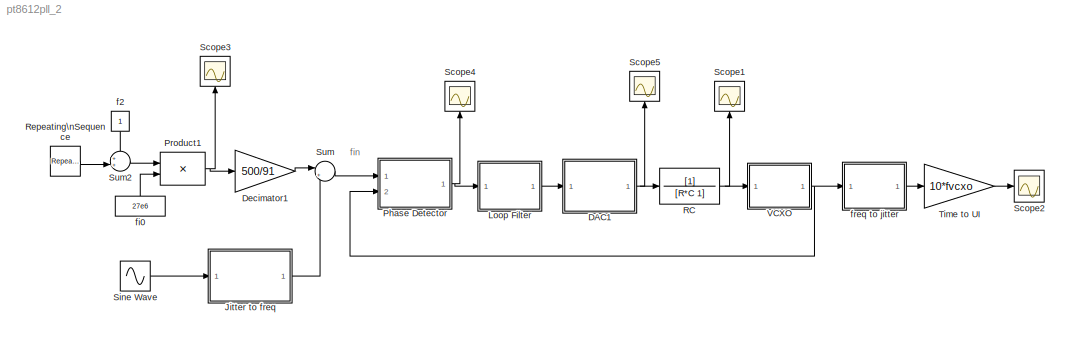
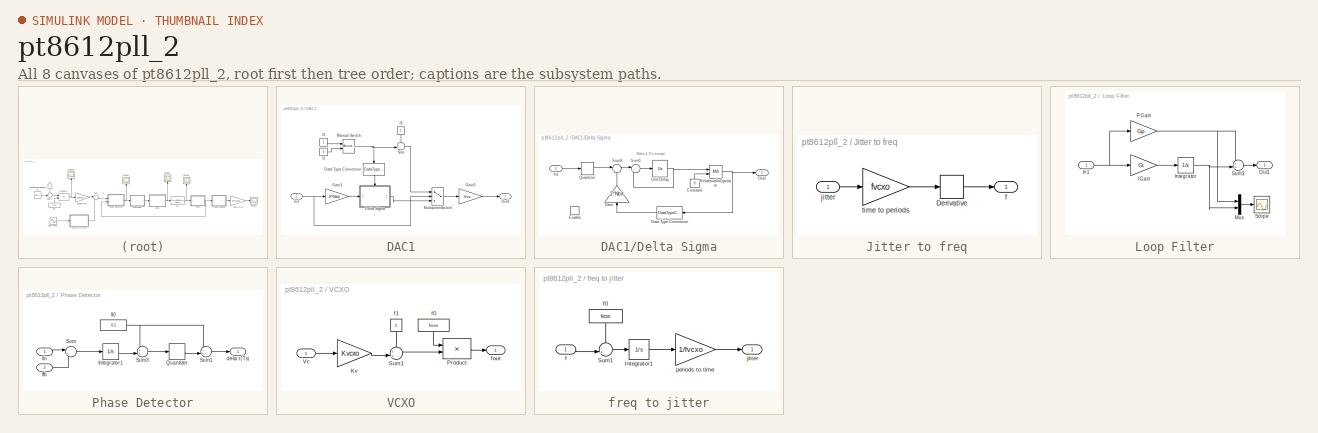
[diagram: thumbnail index - all 8 canvases of the model, root first then tree order]
MODEL pt8612pll_2
KIND model
CONFIG AbsTol = 1e-11
CONFIG FixedStep = auto
CONFIG MaxStep = auto
CONFIG MinStep = auto
CONFIG RelTol = 1e-8
CONFIG Solver = ode45
CONFIG SolverMode = Auto
CONFIG StartTime = 0.0
CONFIG StopTime = 100
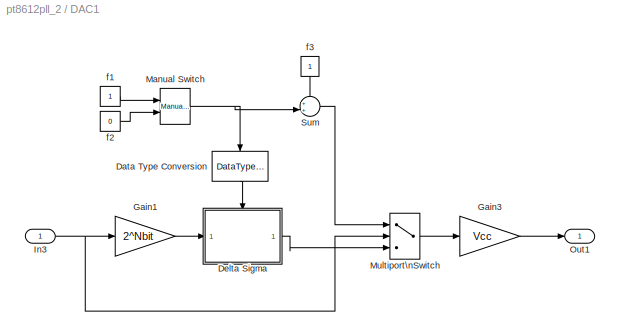
BLOCK [SubSystem] DAC1
  Ports = [1, 1]
  TreatAsAtomicUnit = off
BLOCK [DataTypeConversion] DAC1/Data Type Conversion
  DataType = boolean
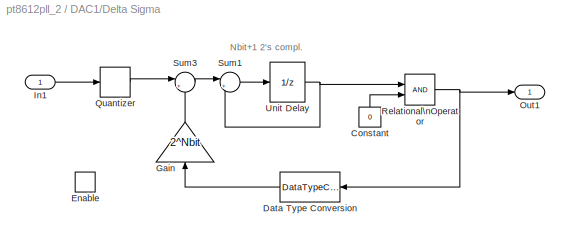
BLOCK [SubSystem] DAC1/Delta Sigma
  Ports = [1, 1, 1]
  TreatAsAtomicUnit = off
BLOCK [Constant] DAC1/Delta Sigma/Constant
  Value = 0
BLOCK [DataTypeConversion] DAC1/Delta Sigma/Data Type Conversion
BLOCK [EnablePort] DAC1/Delta Sigma/Enable
  Ports = []
  ZeroCross = off
BLOCK [Gain] DAC1/Delta Sigma/Gain
  Gain = 2^Nbit
BLOCK [Inport] DAC1/Delta Sigma/In1
BLOCK [Outport] DAC1/Delta Sigma/Out1
BLOCK [Quantizer] DAC1/Delta Sigma/Quantizer
  QuantizationInterval = 1
BLOCK [RelationalOperator] DAC1/Delta Sigma/Relational\nOperator
  InputSameDT = off
BLOCK [Sum] DAC1/Delta Sigma/Sum1
  IconShape = round
  InputSameDT = off
  Inputs = |++
  OutDataTypeMode = Inherit via internal rule
  Ports = [2, 1]
BLOCK [Sum] DAC1/Delta Sigma/Sum3
  IconShape = round
  InputSameDT = off
  Inputs = |+-
  OutDataTypeMode = Inherit via internal rule
  Ports = [2, 1]
BLOCK [UnitDelay] DAC1/Delta Sigma/Unit Delay
  SampleTime = Tds
BLOCK [Gain] DAC1/Gain1
  Gain = 2^Nbit
BLOCK [Gain] DAC1/Gain3
  Gain = Vcc
BLOCK [Inport] DAC1/In3
BLOCK [Reference] DAC1/Manual Switch  REF=simulink/Signal\nRouting/Manual Switch
  Ports = [2, 1]
  SourceBlock = simulink/Signal\nRouting/Manual Switch
  SourceType = Manual Switch
  action = 0
  sw = 0
BLOCK [MultiPortSwitch] DAC1/Multiport\nSwitch
  InputSameDT = off
  Inputs = 2
  Ports = [3, 1]
BLOCK [Outport] DAC1/Out1
BLOCK [Sum] DAC1/Sum
  IconShape = round
  InputSameDT = off
  Inputs = ++|
  OutDataTypeMode = Inherit via internal rule
  Ports = [2, 1]
BLOCK [Constant] DAC1/f1
BLOCK [Constant] DAC1/f2
  Value = 0
BLOCK [Constant] DAC1/f3
BLOCK [Gain] Decimator1
  Gain = 500/91
BLOCK [SubSystem] Jitter to freq
  Ports = [1, 1]
  TreatAsAtomicUnit = off
BLOCK [Derivative] Jitter to freq/Derivative
BLOCK [Outport] Jitter to freq/f
BLOCK [Inport] Jitter to freq/jitter
BLOCK [Gain] Jitter to freq/time to periods
  Gain = fvcxo
BLOCK [SubSystem] Loop Filter
  Ports = [1, 1]
  TreatAsAtomicUnit = off
BLOCK [Gain] Loop Filter/I Gain
  Gain = Gi
BLOCK [Inport] Loop Filter/In1
BLOCK [Integrator] Loop Filter/Integrator
  Ports = [1, 1]
BLOCK [Mux] Loop Filter/Mux
  DisplayOption = bar
  Inputs = 2
  Ports = [2, 1]
BLOCK [Outport] Loop Filter/Out1
BLOCK [Gain] Loop Filter/P Gain
  Gain = Gp
BLOCK [Scope] Loop Filter/Scope
  DataFormat = StructureWithTime
  LimitDataPoints = off
  NumInputPorts = 1
  Ports = [1]
  SaveName = ScopeData2
  YMax = 0.85
  YMin = 0
  ZoomMode = yonly
BLOCK [Sum] Loop Filter/Sum3
  IconShape = round
  InputSameDT = off
  Inputs = ++|
  OutDataTypeMode = Inherit via internal rule
  Ports = [2, 1]
BLOCK [SubSystem] Phase Detector
  Ports = [2, 1]
  TreatAsAtomicUnit = off
BLOCK [Integrator] Phase Detector/Integrator1
  Ports = [1, 1]
BLOCK [Quantizer] Phase Detector/Quantizer
  QuantizationInterval = 1
BLOCK [Sum] Phase Detector/Sum
  IconShape = round
  InputSameDT = off
  Inputs = |+-
  OutDataTypeMode = Inherit via internal rule
  Ports = [2, 1]
BLOCK [Sum] Phase Detector/Sum1
  IconShape = round
  InputSameDT = off
  Inputs = -+|
  OutDataTypeMode = Inherit via internal rule
  Ports = [2, 1]
BLOCK [Sum] Phase Detector/Sum3
  IconShape = round
  InputSameDT = off
  Inputs = ++|
  OutDataTypeMode = Inherit via internal rule
  Ports = [2, 1]
BLOCK [Outport] Phase Detector/delta t (Ts)
BLOCK [Inport] Phase Detector/ffb
  Port = 2
BLOCK [Constant] Phase Detector/fi0
  Value = 0.5
BLOCK [Inport] Phase Detector/fin
BLOCK [Product] Product1
  InputSameDT = off
  Ports = [2, 1]
BLOCK [TransferFcn] RC
  Denominator = [R*C 1]
BLOCK [Reference] Repeating\nSequence  REF=simulink/Sources/Repeating\nSequence
  Ports = [0, 1]
  SourceBlock = simulink/Sources/Repeating\nSequence
  SourceType = Repeating table
  rep_seq_t = [0 1 1 1000]
  rep_seq_y = [1 1 0 0]*1e-9
BLOCK [Scope] Scope1
  DataFormat = StructureWithTime
  LimitDataPoints = off
  NumInputPorts = 1
  Ports = [1]
  SaveName = ScopeData1
  TimeRange = 10
  YMax = 0.2
  YMin = -0.35
BLOCK [Scope] Scope2
  DataFormat = StructureWithTime
  LimitDataPoints = off
  NumInputPorts = 1
  Ports = [1]
  SaveName = ScopeData3
  TimeRange = 10
  YMax = 1.56
  YMin = 1.48
BLOCK [Scope] Scope3
  DataFormat = StructureWithTime
  LimitDataPoints = off
  NumInputPorts = 1
  Ports = [1]
  SaveName = ScopeData4
  YMax = 1.9
  YMin = 5.55112e-017
  ZoomMode = xonly
BLOCK [Scope] Scope4
  DataFormat = StructureWithTime
  LimitDataPoints = off
  NumInputPorts = 1
  Ports = [1]
  TimeRange = 10
  YMax = 0.5
  YMin = -0.5
  ZoomMode = xonly
BLOCK [Scope] Scope5
  DataFormat = StructureWithTime
  LimitDataPoints = off
  NumInputPorts = 1
  Ports = [1]
  SaveName = ScopeData5
  TimeRange = 10
  YMax = 0.2
  YMin = -0.35
  ZoomMode = xonly
BLOCK [Sin] Sine Wave
  Amplitude = 1e-9
  Frequency = 100
  SampleTime = 0
  SineType = Time based
BLOCK [Sum] Sum
  IconShape = round
  InputSameDT = off
  Inputs = |++
  OutDataTypeMode = Inherit via internal rule
  Ports = [2, 1]
BLOCK [Sum] Sum2
  IconShape = round
  InputSameDT = off
  Inputs = ++|
  OutDataTypeMode = Inherit via internal rule
  Ports = [2, 1]
BLOCK [Gain] Time to UI
  Gain = 10*fvcxo
BLOCK [SubSystem] VCXO
  Ports = [1, 1]
  TreatAsAtomicUnit = off
BLOCK [Gain] VCXO/Kv
  Gain = Kvcxo
BLOCK [Product] VCXO/Product
  InputSameDT = off
  Ports = [2, 1]
BLOCK [Sum] VCXO/Sum1
  IconShape = round
  InputSameDT = off
  Inputs = ++|
  OutDataTypeMode = Inherit via internal rule
  Ports = [2, 1]
BLOCK [Inport] VCXO/Vc
BLOCK [Constant] VCXO/f0
  Value = fvcxo
BLOCK [Constant] VCXO/f1
BLOCK [Outport] VCXO/fout
BLOCK [Constant] f2
BLOCK [Constant] fi0
  Value = 27e6
BLOCK [SubSystem] freq to jitter
  Ports = [1, 1]
  TreatAsAtomicUnit = off
BLOCK [Integrator] freq to jitter/Integrator1
  Ports = [1, 1]
BLOCK [Sum] freq to jitter/Sum1
  IconShape = round
  InputSameDT = off
  Inputs = -+|
  OutDataTypeMode = Inherit via internal rule
  Ports = [2, 1]
BLOCK [Inport] freq to jitter/f
BLOCK [Constant] freq to jitter/f0
  Value = fvcxo
BLOCK [Outport] freq to jitter/jitter
BLOCK [Gain] freq to jitter/periods to time
  Gain = 1/fvcxo
ANNOTATION (root): fin
ANNOTATION DAC1/Delta Sigma: Nbit+1 2's compl.
LINE DAC1/Data Type Conversion:1 -> DAC1/Delta Sigma:enable
LINE DAC1/Delta Sigma/Constant:1 -> DAC1/Delta Sigma/Relational\nOperator:2
LINE DAC1/Delta Sigma/Data Type Conversion:1 -> DAC1/Delta Sigma/Gain:1
LINE DAC1/Delta Sigma/Gain:1 -> DAC1/Delta Sigma/Sum3:2
LINE DAC1/Delta Sigma/In1:1 -> DAC1/Delta Sigma/Quantizer:1
LINE DAC1/Delta Sigma/Quantizer:1 -> DAC1/Delta Sigma/Sum3:1
NET DAC1/Delta Sigma/Relational\nOperator:1 -> DAC1/Delta Sigma/Data Type Conversion:1, DAC1/Delta Sigma/Out1:1
LINE DAC1/Delta Sigma/Sum1:1 -> DAC1/Delta Sigma/Unit Delay:1
LINE DAC1/Delta Sigma/Sum3:1 -> DAC1/Delta Sigma/Sum1:1
NET DAC1/Delta Sigma/Unit Delay:1 -> DAC1/Delta Sigma/Relational\nOperator:1, DAC1/Delta Sigma/Sum1:2
LINE DAC1/Delta Sigma:1 -> DAC1/Multiport\nSwitch:3
LINE DAC1/Gain1:1 -> DAC1/Delta Sigma:1
LINE DAC1/Gain3:1 -> DAC1/Out1:1
NET DAC1/In3:1 -> DAC1/Gain1:1, DAC1/Multiport\nSwitch:2
NET DAC1/Manual Switch:1 -> DAC1/Data Type Conversion:1, DAC1/Sum:2
LINE DAC1/Multiport\nSwitch:1 -> DAC1/Gain3:1
LINE DAC1/Sum:1 -> DAC1/Multiport\nSwitch:1
LINE DAC1/f1:1 -> DAC1/Manual Switch:1
LINE DAC1/f2:1 -> DAC1/Manual Switch:2
LINE DAC1/f3:1 -> DAC1/Sum:1
NET DAC1:1 -> RC:1, Scope5:1
LINE Decimator1:1 -> Sum:1
LINE Jitter to freq/Derivative:1 -> Jitter to freq/f:1
LINE Jitter to freq/jitter:1 -> Jitter to freq/time to periods:1
LINE Jitter to freq/time to periods:1 -> Jitter to freq/Derivative:1
LINE Jitter to freq:1 -> Sum:2
LINE Loop Filter/I Gain:1 -> Loop Filter/Integrator:1
NET Loop Filter/In1:1 -> Loop Filter/I Gain:1, Loop Filter/P Gain:1
NET Loop Filter/Integrator:1 -> Loop Filter/Mux:2, Loop Filter/Sum3:2
LINE Loop Filter/Mux:1 -> Loop Filter/Scope:1
NET Loop Filter/P Gain:1 -> Loop Filter/Mux:1, Loop Filter/Sum3:1
LINE Loop Filter/Sum3:1 -> Loop Filter/Out1:1
LINE Loop Filter:1 -> DAC1:1
LINE Phase Detector/Integrator1:1 -> Phase Detector/Sum3:2
LINE Phase Detector/Quantizer:1 -> Phase Detector/Sum1:2
LINE Phase Detector/Sum1:1 -> Phase Detector/delta t (Ts):1
LINE Phase Detector/Sum3:1 -> Phase Detector/Quantizer:1
LINE Phase Detector/Sum:1 -> Phase Detector/Integrator1:1
LINE Phase Detector/ffb:1 -> Phase Detector/Sum:2
NET Phase Detector/fi0:1 -> Phase Detector/Sum1:1, Phase Detector/Sum3:1
LINE Phase Detector/fin:1 -> Phase Detector/Sum:1
NET Phase Detector:1 -> Loop Filter:1, Scope4:1
NET Product1:1 -> Decimator1:1, Scope3:1
NET RC:1 -> Scope1:1, VCXO:1
LINE Repeating\nSequence:1 -> Sum2:2
LINE Sine Wave:1 -> Jitter to freq:1
LINE Sum2:1 -> Product1:1
LINE Sum:1 -> Phase Detector:1
LINE Time to UI:1 -> Scope2:1
LINE VCXO/Kv:1 -> VCXO/Sum1:2
LINE VCXO/Product:1 -> VCXO/fout:1
LINE VCXO/Sum1:1 -> VCXO/Product:2
LINE VCXO/Vc:1 -> VCXO/Kv:1
LINE VCXO/f0:1 -> VCXO/Product:1
LINE VCXO/f1:1 -> VCXO/Sum1:1
NET VCXO:1 -> Phase Detector:2, freq to jitter:1
LINE f2:1 -> Sum2:1
LINE fi0:1 -> Product1:2
LINE freq to jitter/Integrator1:1 -> freq to jitter/periods to time:1
LINE freq to jitter/Sum1:1 -> freq to jitter/Integrator1:1
LINE freq to jitter/f0:1 -> freq to jitter/Sum1:1
LINE freq to jitter/f:1 -> freq to jitter/Sum1:2
LINE freq to jitter/periods to time:1 -> freq to jitter/jitter:1
LINE freq to jitter:1 -> Time to UI:1
note: NET lines group one-source signal fan-out (src -> all destinations, sorted); 1:1 wires keep LINE
